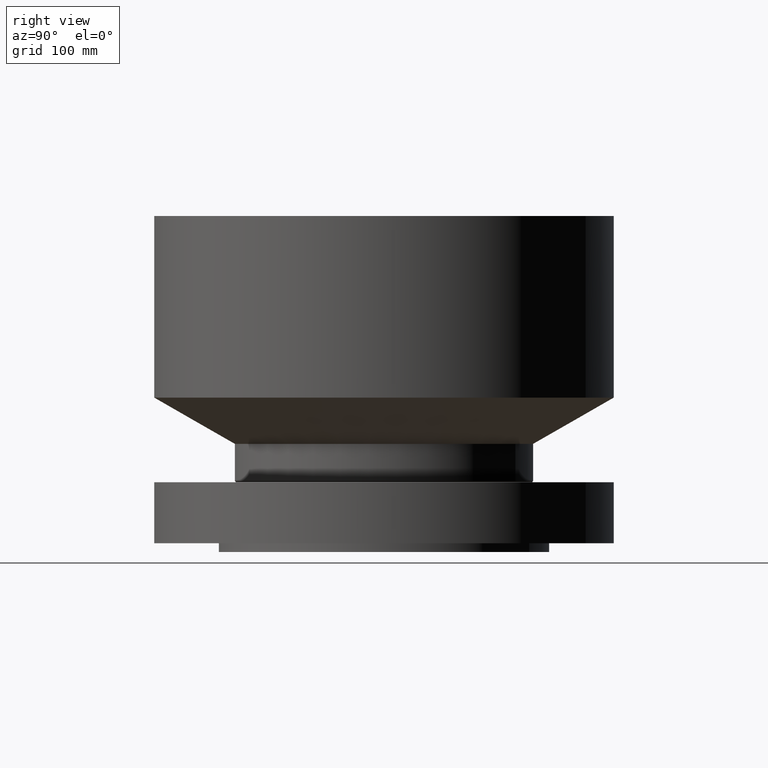
[diagram: clean part render]
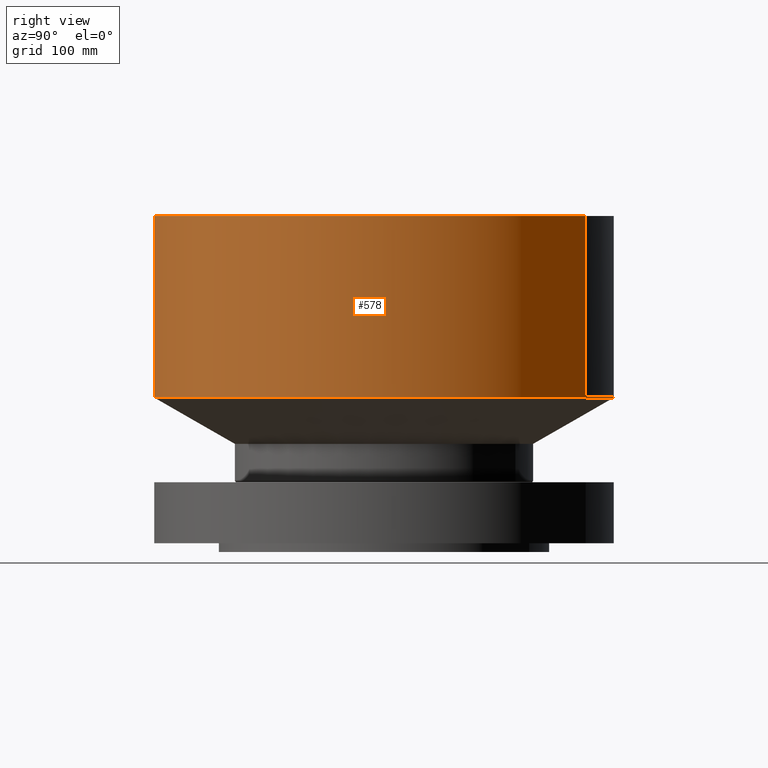
[diagram: same view with one face highlighted and labeled with its STEP entity id]
A machine part, right view. The second image highlights one B-rep face of the part: STEP entity #578.
In plain terms, the highlighted cylindrical surface (partial cylindrical patch) has radius 209.55 mm, axis along (0, 0, -1).
Its self-contained STEP definition (entity closure, byte-faithful):
#327=AXIS2_PLACEMENT_3D('Cylinder Axis2P3D',#324,#325,#326) ;
#524=AXIS2_PLACEMENT_3D('Circle Axis2P3D',#522,#523,$) ;
#562=AXIS2_PLACEMENT_3D('Circle Axis2P3D',#560,#561,$) ;
#324=CARTESIAN_POINT('Axis2P3D Location',(0.,0.,5.71850000002)) ;
#519=CARTESIAN_POINT('Vertex',(3.9552606935,7.24005613562,5.22988202394)) ;
#522=CARTESIAN_POINT('Axis2P3D Location',(0.,0.,5.22988202394)) ;
#526=CARTESIAN_POINT('Vertex',(-3.9552606935,-7.24005613562,5.22988202394)) ;
#553=CARTESIAN_POINT('Line Origine',(3.9552606935,7.24005613562,8.48994101199)) ;
#557=CARTESIAN_POINT('Vertex',(3.9552606935,7.24005613562,11.75)) ;
#560=CARTESIAN_POINT('Axis2P3D Location',(0.,0.,11.75)) ;
#564=CARTESIAN_POINT('Vertex',(-3.9552606935,-7.24005613562,11.75)) ;
#567=CARTESIAN_POINT('Line Origine',(-3.9552606935,-7.24005613562,8.48994101199)) ;
#325=DIRECTION('Axis2P3D Direction',(0.,0.,-0.0393700787402)) ;
#326=DIRECTION('Axis2P3D XDirection',(-0.0188750212049,-0.0345504945626,0.)) ;
#523=DIRECTION('Axis2P3D Direction',(-0.,0.,0.0393700787402)) ;
#554=DIRECTION('Vector Direction',(0.,0.,-0.0393700787402)) ;
#561=DIRECTION('Axis2P3D Direction',(0.,0.,-0.0393700787402)) ;
#568=DIRECTION('Vector Direction',(0.,0.,-0.0393700787402)) ;
#555=VECTOR('Line Direction',#554,0.0393700787402) ;
#569=VECTOR('Line Direction',#568,0.0393700787402) ;
#573=ORIENTED_EDGE('',*,*,#528,.F.) ;
#574=ORIENTED_EDGE('',*,*,#559,.T.) ;
#575=ORIENTED_EDGE('',*,*,#566,.T.) ;
#576=ORIENTED_EDGE('',*,*,#571,.F.) ;
#578=ADVANCED_FACE('PartBody',(#577),#328,.T.) ;
#525=CIRCLE('generated circle',#524,8.25000000003) ;
#563=CIRCLE('generated circle',#562,8.25000000003) ;
#328=CYLINDRICAL_SURFACE('generated cylinder',#327,8.25000000003) ;
#528=EDGE_CURVE('',#520,#527,#525,.F.) ;
#559=EDGE_CURVE('',#520,#558,#556,.F.) ;
#566=EDGE_CURVE('',#558,#565,#563,.T.) ;
#571=EDGE_CURVE('',#527,#565,#570,.F.) ;
#572=EDGE_LOOP('',(#573,#574,#575,#576)) ;
#577=FACE_OUTER_BOUND('',#572,.T.) ;
#556=LINE('Line',#553,#555) ;
#570=LINE('Line',#567,#569) ;
#520=VERTEX_POINT('',#519) ;
#527=VERTEX_POINT('',#526) ;
#558=VERTEX_POINT('',#557) ;
#565=VERTEX_POINT('',#564) ;